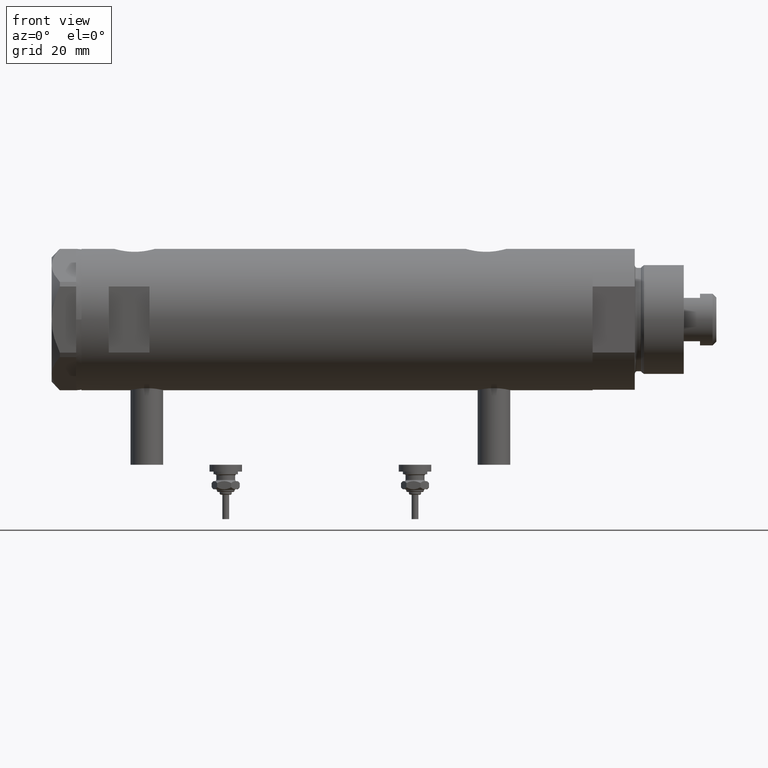
[diagram: clean part render]
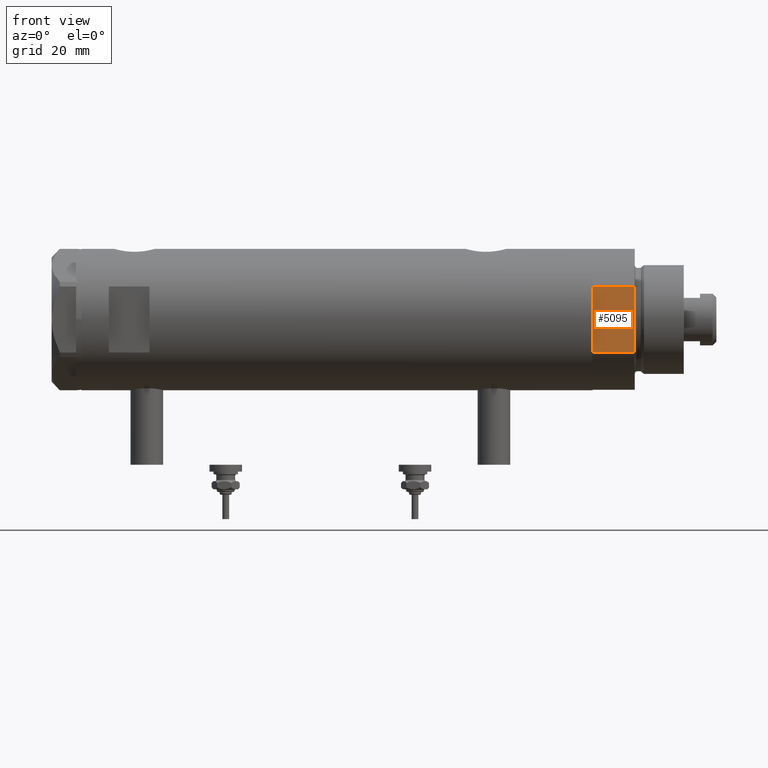
[diagram: same view with one face highlighted and labeled with its STEP entity id]
A machine part, front view. The second image highlights one B-rep face of the part: STEP entity #5095.
In plain terms, the highlighted planar face has unit normal (-0, 1, 0).
Its self-contained STEP definition (entity closure, byte-faithful):
#169 = CARTESIAN_POINT ( 'NONE',  ( 12.12435565298215323, -22.99999999999999645, 0.000000000000000000 ) ) ;
#226 = LINE ( 'NONE', #2213, #5184 ) ;
#824 = PLANE ( 'NONE',  #3751 ) ;
#1018 = VERTEX_POINT ( 'NONE', #4297 ) ;
#1093 = VECTOR ( 'NONE', #1765, 1000.000000000000000 ) ;
#1304 = CARTESIAN_POINT ( 'NONE',  ( -12.12435565298215145, -22.99999999999999645, 0.000000000000000000 ) ) ;
#1392 = EDGE_CURVE ( 'NONE', #2924, #1018, #4381, .T. ) ;
#1461 = CARTESIAN_POINT ( 'NONE',  ( -12.12435565298215145, -22.99999999999999645, 0.000000000000000000 ) ) ;
#1623 = ORIENTED_EDGE ( 'NONE', *, *, #3199, .T. ) ;
#1765 = DIRECTION ( 'NONE',  ( -1.000000000000000000, -0.000000000000000000, -0.000000000000000000 ) ) ;
#2156 = CARTESIAN_POINT ( 'NONE',  ( 12.12435565298215323, -22.99999999999999645, 0.000000000000000000 ) ) ;
#2183 = LINE ( 'NONE', #2156, #3129 ) ;
#2213 = CARTESIAN_POINT ( 'NONE',  ( -12.12435565298215145, -22.99999999999999645, 0.000000000000000000 ) ) ;
#2322 = EDGE_CURVE ( 'NONE', #4459, #4972, #2183, .T. ) ;
#2507 = VECTOR ( 'NONE', #3359, 1000.000000000000000 ) ;
#2820 = DIRECTION ( 'NONE',  ( -0.000000000000000000, 1.000000000000000000, 0.000000000000000000 ) ) ;
#2924 = VERTEX_POINT ( 'NONE', #4950 ) ;
#3129 = VECTOR ( 'NONE', #6146, 1000.000000000000000 ) ;
#3163 = LINE ( 'NONE', #6151, #1093 ) ;
#3199 = EDGE_CURVE ( 'NONE', #4972, #1018, #3163, .T. ) ;
#3327 = DIRECTION ( 'NONE',  ( 0.000000000000000000, -0.000000000000000000, 1.000000000000000000 ) ) ;
#3338 = ORIENTED_EDGE ( 'NONE', *, *, #3890, .F. ) ;
#3359 = DIRECTION ( 'NONE',  ( -0.000000000000000000, -0.000000000000000000, 1.000000000000000000 ) ) ;
#3751 = AXIS2_PLACEMENT_3D ( 'NONE', #1304, #2820, #3327 ) ;
#3890 = EDGE_CURVE ( 'NONE', #4459, #2924, #226, .T. ) ;
#4100 = ORIENTED_EDGE ( 'NONE', *, *, #1392, .F. ) ;
#4129 = CARTESIAN_POINT ( 'NONE',  ( 12.12435565298215323, -22.99999999999999645, 15.50000000000000000 ) ) ;
#4297 = CARTESIAN_POINT ( 'NONE',  ( -12.12435565298215323, -22.99999999999999645, 15.50000000000000000 ) ) ;
#4381 = LINE ( 'NONE', #1461, #2507 ) ;
#4459 = VERTEX_POINT ( 'NONE', #169 ) ;
#4675 = DIRECTION ( 'NONE',  ( -1.000000000000000000, -0.000000000000000000, -0.000000000000000000 ) ) ;
#4950 = CARTESIAN_POINT ( 'NONE',  ( -12.12435565298215501, -22.99999999999999645, 0.000000000000000000 ) ) ;
#4972 = VERTEX_POINT ( 'NONE', #4129 ) ;
#5081 = EDGE_LOOP ( 'NONE', ( #1623, #4100, #3338, #5738 ) ) ;
#5095 = ADVANCED_FACE ( 'NONE', ( #5695 ), #824, .F. ) ;
#5184 = VECTOR ( 'NONE', #4675, 1000.000000000000000 ) ;
#5695 = FACE_OUTER_BOUND ( 'NONE', #5081, .T. ) ;
#5738 = ORIENTED_EDGE ( 'NONE', *, *, #2322, .T. ) ;
#6146 = DIRECTION ( 'NONE',  ( -0.000000000000000000, -0.000000000000000000, 1.000000000000000000 ) ) ;
#6151 = CARTESIAN_POINT ( 'NONE',  ( -12.12435565298215145, -22.99999999999999645, 15.50000000000000000 ) ) ;